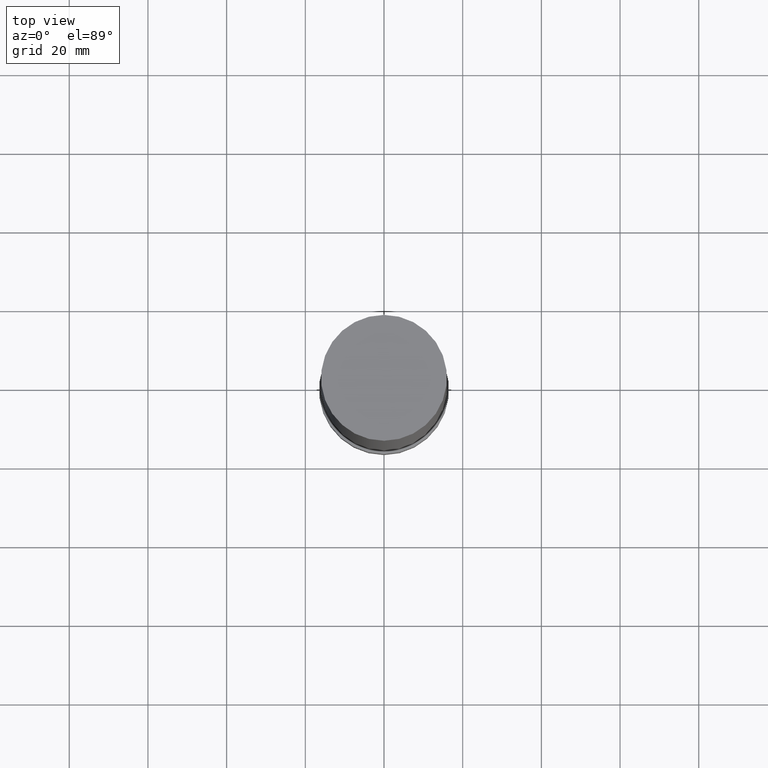
[diagram: clean part render]
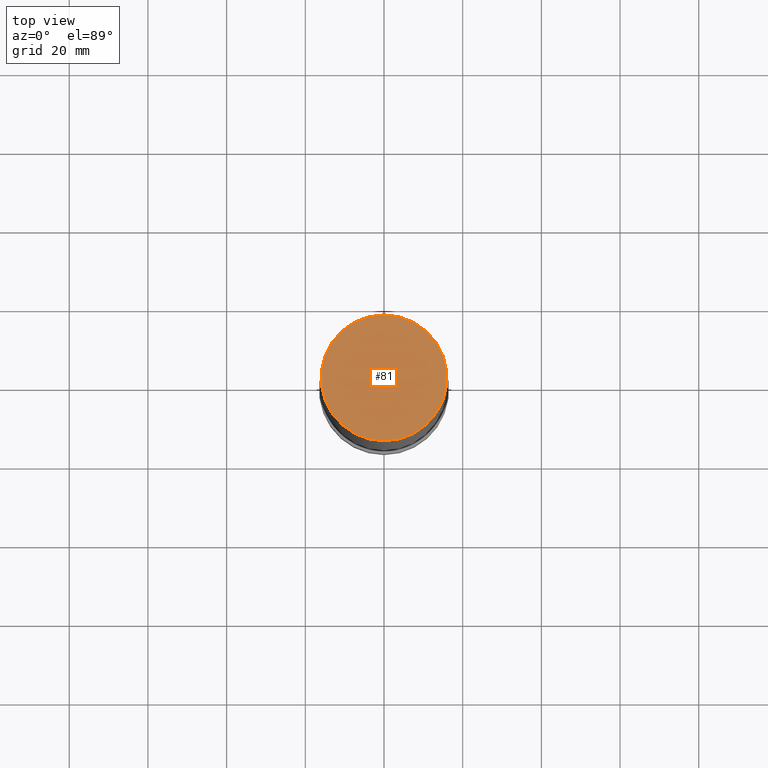
[diagram: same view with one face highlighted and labeled with its STEP entity id]
A machine part, top view. The second image highlights one B-rep face of the part: STEP entity #81.
In plain terms, the highlighted planar face has unit normal (-0, -0, 1).
Its self-contained STEP definition (entity closure, byte-faithful):
#81=ADVANCED_FACE('',(#100),#101,.T.);
#100=FACE_OUTER_BOUND('',#119,.T.);
#101=PLANE('',#120);
#119=EDGE_LOOP('',(#150));
#120=AXIS2_PLACEMENT_3D('',#151,#152,#153);
#150=ORIENTED_EDGE('',*,*,#159,.T.);
#151=CARTESIAN_POINT('',(-1.10218211923262E-014,7.99999999999772,180.0));
#152=DIRECTION('',(-6.12323399573677E-017,-1.43333193951167E-014,1.0));
#153=DIRECTION('',(-8.82489838650085E-031,1.0,1.43333193951167E-014));
#159=EDGE_CURVE('',#170,#170,#171,.T.);
#170=VERTEX_POINT('',#182);
#171=CIRCLE('',#183,16.0000000000001);
#182=CARTESIAN_POINT('',(-1.10218211923262E-014,15.9999999999978,180.0));
#183=AXIS2_PLACEMENT_3D('',#199,#200,#201);
#199=CARTESIAN_POINT('',(-1.10218211923262E-014,-2.31294093968195E-012,180.0));
#200=DIRECTION('',(-6.12323399573677E-017,-1.28738160312661E-014,1.0));
#201=DIRECTION('',(-7.93121032505865E-031,1.0,1.28738160312661E-014));